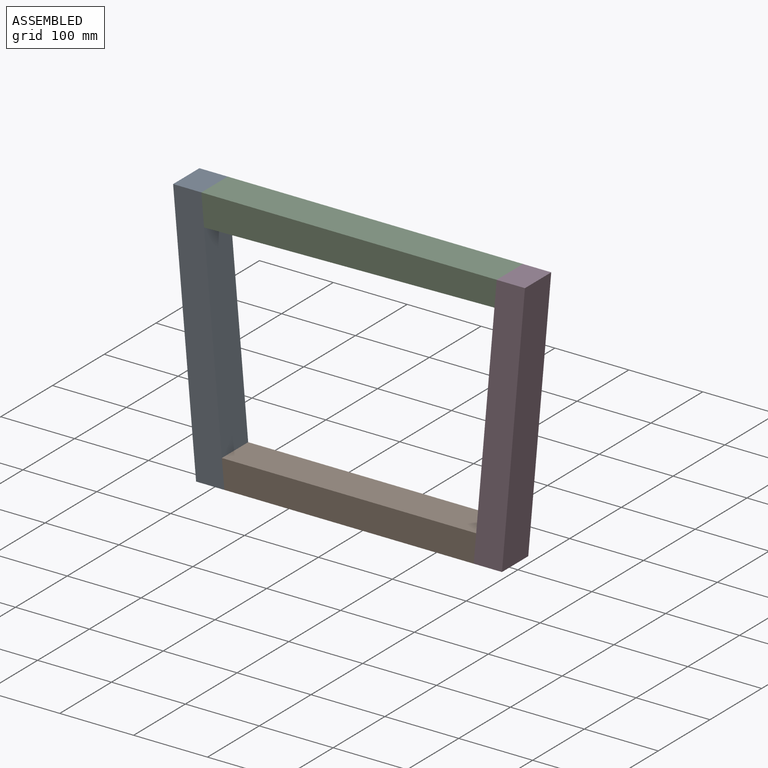
[diagram: assembled view]
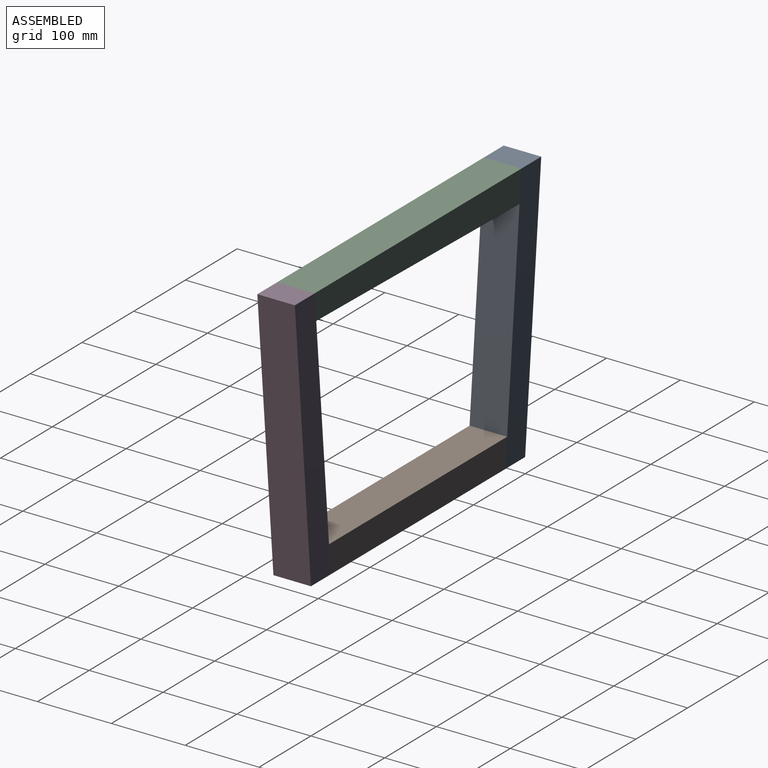
[diagram: assembled view, second angle]
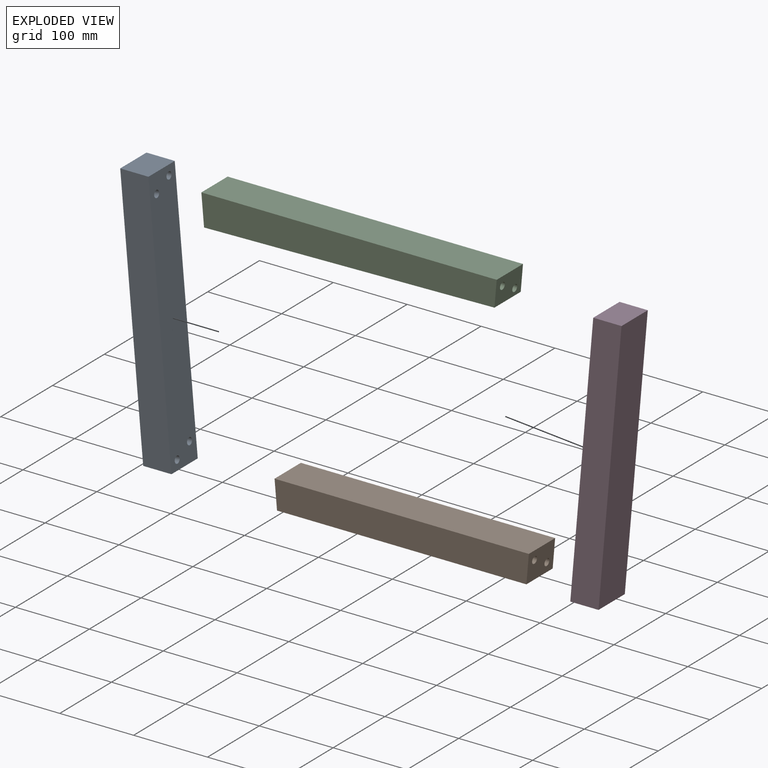
[diagram: exploded view]
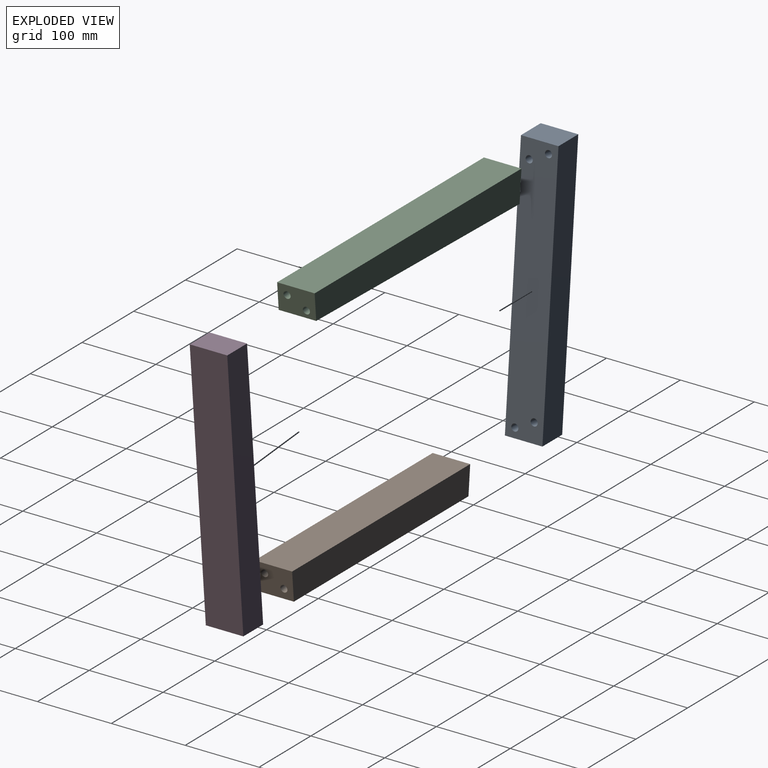
[diagram: exploded view, second angle]
ASSEMBLY  parts=4 mates=3
PART A: 14 faces, bbox 69.4x50.8x355.6 mm
  f0: plane 355.6x50.8mm, normal (-1,0,0.09), area 17848.5mm2, adj f1,f3,f4,f5,f6,f8,f10,f12
  f1: plane 50.8x38.25mm, normal (0,0,-1), area 1942.9mm2, adj f0,f2,f4,f5
  f2: plane 355.6x50.8mm, normal (1,0,-0.09), area 18133.5mm2, adj f1,f3,f4,f5
  f3: plane 50.8x38.25mm, normal (0,0,1), area 1942.9mm2, adj f0,f2,f4,f5
  f4: plane 355.6x69.36mm, normal (0,-1,0), area 13600.1mm2, adj f0,f1,f2,f3
  f5: plane 355.6x69.36mm, normal (0,1,0), area 13600.1mm2, adj f0,f1,f2,f3
  f6: cylinder r=4.76mm len=19.81mm, axis (-1,0,0.09), area 570mm2, adj f0,f7
  f7: plane 9.53x9.49mm, normal (-1,0,0.09), area 71.3mm2, adj f6
  f8: cylinder r=4.76mm len=19.81mm, axis (-1,0,0.09), area 570mm2, adj f0,f9
  f9: plane 9.53x9.49mm, normal (-1,0,0.09), area 71.3mm2, adj f8
  f10: cylinder r=4.76mm len=19.81mm, axis (-1,0,0.09), area 570mm2, adj f0,f11
  f11: plane 9.53x9.49mm, normal (-1,0,0.09), area 71.3mm2, adj f10
  f12: cylinder r=4.76mm len=19.81mm, axis (-1,0,0.09), area 570mm2, adj f0,f13
  f13: plane 9.53x9.49mm, normal (-1,0,0.09), area 71.3mm2, adj f12
PART B: 14 faces, bbox 344.2x50.8x38.1 mm
  f0: plane 344.2x50.8mm, normal (0,0,1), area 17485.5mm2, adj f1,f3,f4,f5
  f1: plane 50.8x38.1mm, normal (-1,0,-0.09), area 1800.4mm2, adj f0,f2,f4,f5,f10,f12
  f2: plane 337.54x50.8mm, normal (0,0,-1), area 17146.9mm2, adj f1,f3,f4,f5
  f3: plane 50.8x38.1mm, normal (1,0,-0.09), area 1800.4mm2, adj f0,f2,f4,f5,f6,f8
  f4: plane 344.2x38.1mm, normal (0,-1,0), area 12987.2mm2, adj f0,f1,f2,f3
  f5: plane 344.2x38.1mm, normal (0,1,0), area 12987.2mm2, adj f0,f1,f2,f3
  f6: cylinder r=4.76mm len=19.81mm, axis (1,0,-0.09), area 570mm2, adj f3,f7
  f7: plane 9.53x9.49mm, normal (1,0,-0.09), area 71.3mm2, adj f6
  f8: cylinder r=4.76mm len=19.81mm, axis (1,0,-0.09), area 570mm2, adj f3,f9
  f9: plane 9.53x9.49mm, normal (1,0,-0.09), area 71.3mm2, adj f8
  f10: cylinder r=4.76mm len=19.81mm, axis (-1,0,-0.09), area 570mm2, adj f1,f11
  f11: plane 9.53x9.49mm, normal (-1,0,-0.09), area 71.3mm2, adj f10
  f12: cylinder r=4.76mm len=19.81mm, axis (-1,0,-0.09), area 570mm2, adj f1,f13
  f13: plane 9.53x9.49mm, normal (-1,0,-0.09), area 71.3mm2, adj f12
PART C: 14 faces, bbox 399.8x50.8x41.9 mm
  f0: plane 393.04x50.8mm, normal (0.02,0,-1), area 19969.7mm2, adj f1,f3,f4,f5
  f1: plane 50.8x34.87mm, normal (1,0,-0.09), area 1635.6mm2, adj f0,f2,f4,f5,f6,f8
  f2: plane 399.76x50.8mm, normal (0,0,1), area 20307.8mm2, adj f1,f3,f4,f5
  f3: plane 50.8x41.91mm, normal (-1,0,-0.09), area 1994.8mm2, adj f0,f2,f4,f5,f10,f12
  f4: plane 399.76x41.91mm, normal (0,-1,0), area 15219.2mm2, adj f0,f1,f2,f3
  f5: plane 399.76x41.91mm, normal (0,1,0), area 15219.2mm2, adj f0,f1,f2,f3
  f6: cylinder r=4.76mm len=19.81mm, axis (1,0,-0.09), area 570mm2, adj f1,f7
  f7: plane 9.53x9.49mm, normal (1,0,-0.09), area 71.3mm2, adj f6
  f8: cylinder r=4.76mm len=19.81mm, axis (1,0,-0.09), area 570mm2, adj f1,f9
  f9: plane 9.53x9.49mm, normal (1,0,-0.09), area 71.3mm2, adj f8
  f10: cylinder r=4.76mm len=19.81mm, axis (-1,0,-0.09), area 570mm2, adj f3,f11
  f11: plane 9.53x9.49mm, normal (-1,0,-0.09), area 71.3mm2, adj f10
  f12: cylinder r=4.76mm len=19.81mm, axis (-1,0,-0.09), area 570mm2, adj f3,f13
  f13: plane 9.53x9.49mm, normal (-1,0,-0.09), area 71.3mm2, adj f12
PART D: same geometry as A
PLACE A rot(axis=(0,0,-1),180deg) t=(412.31,-50.8,185.38)mm
PLACE B at identity fixed
PLACE C t=(36.26,0,136.99)mm
PLACE D t=(1.71,0,185.38)mm
MATE fastened A.f0 <-> C.f3  axis (1,0,0.09) through (7.13,0,355.6)mm
MATE fastened C.f1 <-> D.f0  axis (1,0,-0.09) through (406.89,0,355.6)mm
MATE fastened D.f0 <-> B.f3  axis (-1,0,0.09) through (375.78,0,0)mm
